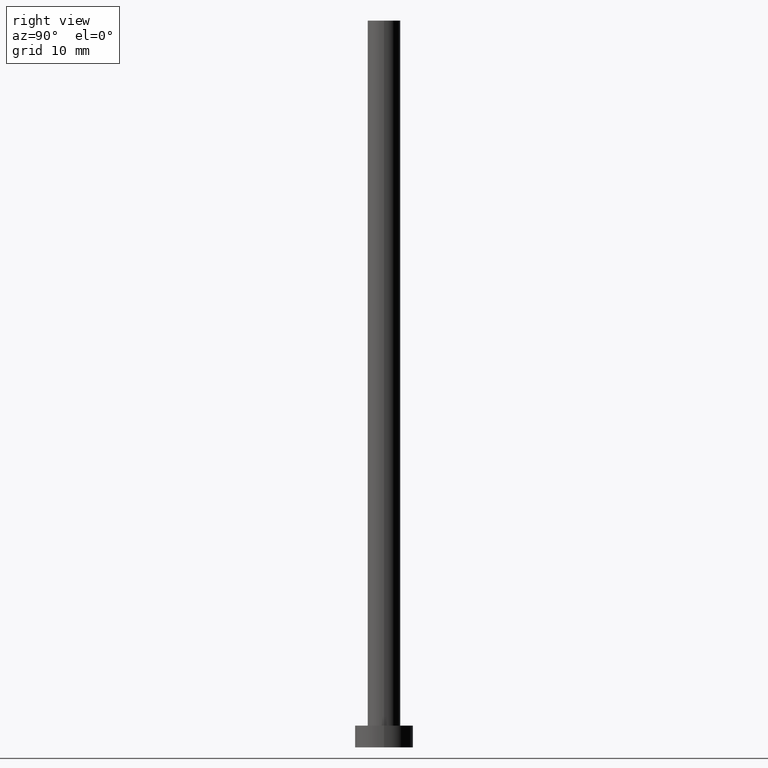
[diagram: clean part render]
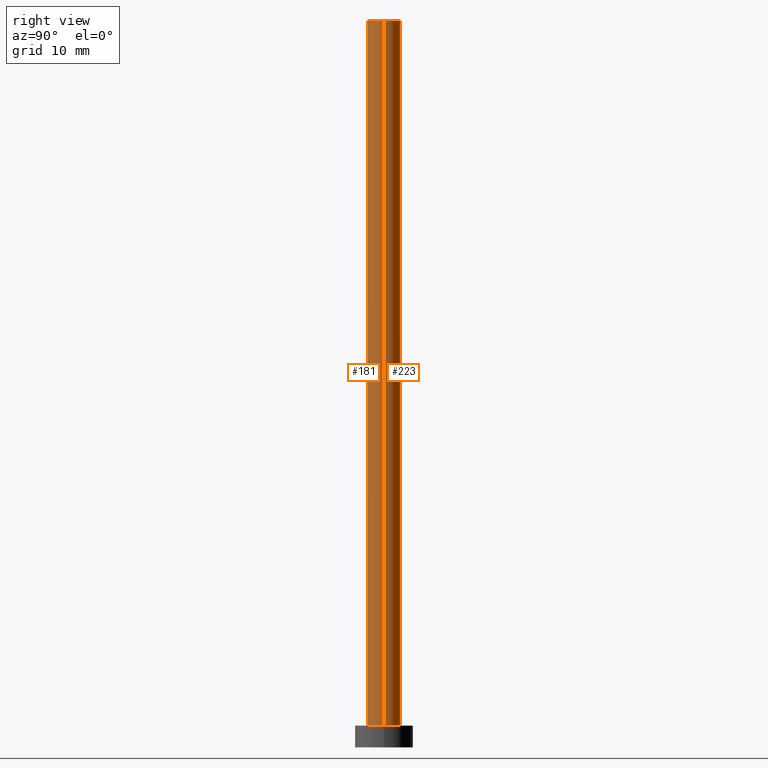
[diagram: same view with one multi-face feature highlighted, each face labeled with its STEP entity id]
A machine part, right view. The highlighted faces form ONE feature: a constant-radius fillet chain: 2 tangent blend faces with common blend radius 2.25 mm. The faces share edges in the B-rep.
Their STEP definitions:
[1] entity #181 (Cylinder):
#4 = FACE_OUTER_BOUND ( 'NONE', #173, .T. ) ;
#13 = VERTEX_POINT ( 'NONE', #73 ) ;
#20 = LINE ( 'NONE', #79, #80 ) ;
#23 = DIRECTION ( 'NONE',  ( -0.000000000000000000, -0.000000000000000000, -1.000000000000000000 ) ) ;
#39 = ORIENTED_EDGE ( 'NONE', *, *, #193, .F. ) ;
#40 = CARTESIAN_POINT ( 'NONE',  ( 0.000000000000000000, 0.000000000000000000, 100.0000000000000000 ) ) ;
#42 = CARTESIAN_POINT ( 'NONE',  ( 0.000000000000000000, 0.000000000000000000, 3.000000000000000000 ) ) ;
#59 = DIRECTION ( 'NONE',  ( -0.000000000000000000, -0.000000000000000000, -1.000000000000000000 ) ) ;
#60 = CARTESIAN_POINT ( 'NONE',  ( 2.250000000000000000, 2.755455298081543792E-16, 100.0000000000000000 ) ) ;
#69 = AXIS2_PLACEMENT_3D ( 'NONE', #42, #192, #195 ) ;
#73 = CARTESIAN_POINT ( 'NONE',  ( -2.250000000000000000, 0.000000000000000000, 3.000000000000000000 ) ) ;
#79 = CARTESIAN_POINT ( 'NONE',  ( -2.250000000000000000, 0.000000000000000000, 100.0000000000000000 ) ) ;
#80 = VECTOR ( 'NONE', #217, 1000.000000000000000 ) ;
#98 = CARTESIAN_POINT ( 'NONE',  ( 0.000000000000000000, 0.000000000000000000, 100.0000000000000000 ) ) ;
#101 = CARTESIAN_POINT ( 'NONE',  ( 2.250000000000000000, 2.755455298081543792E-16, 100.0000000000000000 ) ) ;
#103 = CARTESIAN_POINT ( 'NONE',  ( -2.250000000000000000, 0.000000000000000000, 100.0000000000000000 ) ) ;
#109 = ORIENTED_EDGE ( 'NONE', *, *, #246, .T. ) ;
#115 = VERTEX_POINT ( 'NONE', #182 ) ;
#116 = DIRECTION ( 'NONE',  ( 1.000000000000000000, 0.000000000000000000, 0.000000000000000000 ) ) ;
#125 = LINE ( 'NONE', #101, #143 ) ;
#134 = VERTEX_POINT ( 'NONE', #60 ) ;
#135 = VERTEX_POINT ( 'NONE', #103 ) ;
#143 = VECTOR ( 'NONE', #23, 1000.000000000000000 ) ;
#154 = ORIENTED_EDGE ( 'NONE', *, *, #236, .T. ) ;
#173 = EDGE_LOOP ( 'NONE', ( #39, #213, #109, #154 ) ) ;
#176 = DIRECTION ( 'NONE',  ( -1.000000000000000000, 0.000000000000000000, 0.000000000000000000 ) ) ;
#180 = CIRCLE ( 'NONE', #190, 2.250000000000000000 ) ;
#181 = ADVANCED_FACE ( 'NONE', ( #4 ), #200, .T. ) ;
#182 = CARTESIAN_POINT ( 'NONE',  ( 2.250000000000000000, 2.755455298081543792E-16, 3.000000000000000000 ) ) ;
#190 = AXIS2_PLACEMENT_3D ( 'NONE', #98, #214, #116 ) ;
#192 = DIRECTION ( 'NONE',  ( 0.000000000000000000, 0.000000000000000000, 1.000000000000000000 ) ) ;
#193 = EDGE_CURVE ( 'NONE', #134, #115, #125, .T. ) ;
#194 = CIRCLE ( 'NONE', #69, 2.250000000000000000 ) ;
#195 = DIRECTION ( 'NONE',  ( 1.000000000000000000, 0.000000000000000000, 0.000000000000000000 ) ) ;
#200 = CYLINDRICAL_SURFACE ( 'NONE', #253, 2.250000000000000000 ) ;
#213 = ORIENTED_EDGE ( 'NONE', *, *, #226, .F. ) ;
#214 = DIRECTION ( 'NONE',  ( 0.000000000000000000, 0.000000000000000000, 1.000000000000000000 ) ) ;
#217 = DIRECTION ( 'NONE',  ( -0.000000000000000000, -0.000000000000000000, -1.000000000000000000 ) ) ;
#226 = EDGE_CURVE ( 'NONE', #135, #134, #180, .T. ) ;
#236 = EDGE_CURVE ( 'NONE', #13, #115, #194, .T. ) ;
#246 = EDGE_CURVE ( 'NONE', #135, #13, #20, .T. ) ;
#253 = AXIS2_PLACEMENT_3D ( 'NONE', #40, #59, #176 ) ;
[2] entity #223 (Cylinder):
#8 = EDGE_CURVE ( 'NONE', #115, #13, #235, .T. ) ;
#13 = VERTEX_POINT ( 'NONE', #73 ) ;
#19 = AXIS2_PLACEMENT_3D ( 'NONE', #66, #144, #137 ) ;
#20 = LINE ( 'NONE', #79, #80 ) ;
#23 = DIRECTION ( 'NONE',  ( -0.000000000000000000, -0.000000000000000000, -1.000000000000000000 ) ) ;
#36 = EDGE_LOOP ( 'NONE', ( #113, #187, #251, #53 ) ) ;
#53 = ORIENTED_EDGE ( 'NONE', *, *, #246, .F. ) ;
#60 = CARTESIAN_POINT ( 'NONE',  ( 2.250000000000000000, 2.755455298081543792E-16, 100.0000000000000000 ) ) ;
#66 = CARTESIAN_POINT ( 'NONE',  ( 0.000000000000000000, 0.000000000000000000, 100.0000000000000000 ) ) ;
#73 = CARTESIAN_POINT ( 'NONE',  ( -2.250000000000000000, 0.000000000000000000, 3.000000000000000000 ) ) ;
#76 = CARTESIAN_POINT ( 'NONE',  ( 0.000000000000000000, 0.000000000000000000, 3.000000000000000000 ) ) ;
#79 = CARTESIAN_POINT ( 'NONE',  ( -2.250000000000000000, 0.000000000000000000, 100.0000000000000000 ) ) ;
#80 = VECTOR ( 'NONE', #217, 1000.000000000000000 ) ;
#85 = CARTESIAN_POINT ( 'NONE',  ( 0.000000000000000000, 0.000000000000000000, 100.0000000000000000 ) ) ;
#101 = CARTESIAN_POINT ( 'NONE',  ( 2.250000000000000000, 2.755455298081543792E-16, 100.0000000000000000 ) ) ;
#103 = CARTESIAN_POINT ( 'NONE',  ( -2.250000000000000000, 0.000000000000000000, 100.0000000000000000 ) ) ;
#113 = ORIENTED_EDGE ( 'NONE', *, *, #207, .F. ) ;
#115 = VERTEX_POINT ( 'NONE', #182 ) ;
#117 = AXIS2_PLACEMENT_3D ( 'NONE', #76, #155, #231 ) ;
#125 = LINE ( 'NONE', #101, #143 ) ;
#132 = CIRCLE ( 'NONE', #162, 2.250000000000000000 ) ;
#134 = VERTEX_POINT ( 'NONE', #60 ) ;
#135 = VERTEX_POINT ( 'NONE', #103 ) ;
#137 = DIRECTION ( 'NONE',  ( -1.000000000000000000, 0.000000000000000000, 0.000000000000000000 ) ) ;
#143 = VECTOR ( 'NONE', #23, 1000.000000000000000 ) ;
#144 = DIRECTION ( 'NONE',  ( -0.000000000000000000, -0.000000000000000000, -1.000000000000000000 ) ) ;
#155 = DIRECTION ( 'NONE',  ( 0.000000000000000000, 0.000000000000000000, 1.000000000000000000 ) ) ;
#157 = FACE_OUTER_BOUND ( 'NONE', #36, .T. ) ;
#162 = AXIS2_PLACEMENT_3D ( 'NONE', #85, #234, #215 ) ;
#182 = CARTESIAN_POINT ( 'NONE',  ( 2.250000000000000000, 2.755455298081543792E-16, 3.000000000000000000 ) ) ;
#187 = ORIENTED_EDGE ( 'NONE', *, *, #193, .T. ) ;
#193 = EDGE_CURVE ( 'NONE', #134, #115, #125, .T. ) ;
#207 = EDGE_CURVE ( 'NONE', #134, #135, #132, .T. ) ;
#215 = DIRECTION ( 'NONE',  ( 1.000000000000000000, 0.000000000000000000, 0.000000000000000000 ) ) ;
#217 = DIRECTION ( 'NONE',  ( -0.000000000000000000, -0.000000000000000000, -1.000000000000000000 ) ) ;
#223 = ADVANCED_FACE ( 'NONE', ( #157 ), #242, .T. ) ;
#231 = DIRECTION ( 'NONE',  ( 1.000000000000000000, 0.000000000000000000, 0.000000000000000000 ) ) ;
#234 = DIRECTION ( 'NONE',  ( 0.000000000000000000, 0.000000000000000000, 1.000000000000000000 ) ) ;
#235 = CIRCLE ( 'NONE', #117, 2.250000000000000000 ) ;
#242 = CYLINDRICAL_SURFACE ( 'NONE', #19, 2.250000000000000000 ) ;
#246 = EDGE_CURVE ( 'NONE', #135, #13, #20, .T. ) ;
#251 = ORIENTED_EDGE ( 'NONE', *, *, #8, .T. ) ;